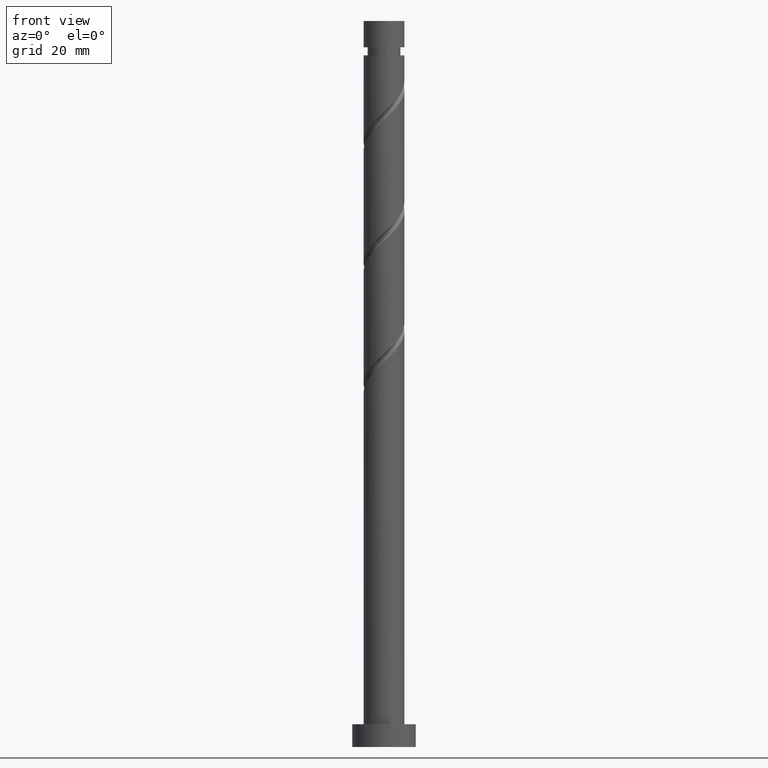
[diagram: clean part render]
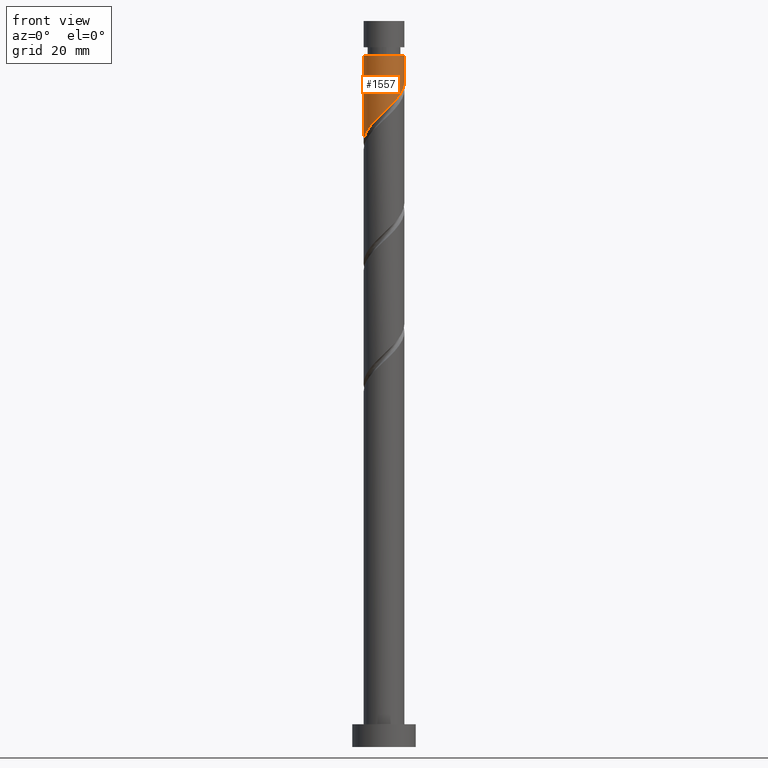
[diagram: same view with one face highlighted and labeled with its STEP entity id]
A machine part, front view. The second image highlights one B-rep face of the part: STEP entity #1557.
In plain terms, the highlighted cylindrical surface (edge-blend (fillet) strip) has radius 4.5 mm, axis along (-0, -0, -1).
Its self-contained STEP definition (entity closure, byte-faithful):
#15 = ORIENTED_EDGE ( 'NONE', *, *, #280, .T. ) ;
#19 = DIRECTION ( 'NONE',  ( -0.000000000000000000, -0.000000000000000000, -1.000000000000000000 ) ) ;
#45 = CARTESIAN_POINT ( 'NONE',  ( -4.500000000000000000, -0.5153801732330594021, 133.7632574273439161 ) ) ;
#63 = CARTESIAN_POINT ( 'NONE',  ( -3.601357663860911273, -2.774677455649288138, 136.0642066314353826 ) ) ;
#139 = CARTESIAN_POINT ( 'NONE',  ( 0.000000000000000000, 0.000000000000000000, 152.4278429950717282 ) ) ;
#196 = CARTESIAN_POINT ( 'NONE',  ( -0.8954886933959596007, -4.410000000000000142, 139.0945096617383570 ) ) ;
#231 = CARTESIAN_POINT ( 'NONE',  ( 4.500000000000000888, 5.510910596163089556E-16, 160.0000000000000000 ) ) ;
#280 = EDGE_CURVE ( 'NONE', #346, #1404, #304, .T. ) ;
#294 = CARTESIAN_POINT ( 'NONE',  ( 4.237671230118710497, -1.513982346470448492, 145.1551157223445045 ) ) ;
#304 = CIRCLE ( 'NONE', #858, 4.499999999999994671 ) ;
#346 = VERTEX_POINT ( 'NONE', #1230 ) ;
#372 = VERTEX_POINT ( 'NONE', #1634 ) ;
#388 = DIRECTION ( 'NONE',  ( -1.000000000000000000, 0.000000000000000000, 0.000000000000000000 ) ) ;
#396 = CARTESIAN_POINT ( 'NONE',  ( -4.383476546723549916, -1.017415040347141808, 134.2460248132535412 ) ) ;
#412 = CYLINDRICAL_SURFACE ( 'NONE', #1386, 4.500000000000000888 ) ;
#424 = CARTESIAN_POINT ( 'NONE',  ( -4.500000000000000888, -1.600379815274127999E-15, 133.2772974743726024 ) ) ;
#435 = CARTESIAN_POINT ( 'NONE',  ( -0.2614264168781278430, -4.538751836628258651, 139.7005702677990371 ) ) ;
#446 = CARTESIAN_POINT ( 'NONE',  ( 4.019993431204682999, -2.123267486448497277, 144.5490551162837960 ) ) ;
#481 = CARTESIAN_POINT ( 'NONE',  ( 4.500000000000000888, 6.730569316573436082E-16, 146.6106308077059737 ) ) ;
#529 = CARTESIAN_POINT ( 'NONE',  ( -4.500000000000000888, 0.000000000000000000, 160.0000000000000000 ) ) ;
#545 = FACE_OUTER_BOUND ( 'NONE', #594, .T. ) ;
#563 = CARTESIAN_POINT ( 'NONE',  ( 3.639477652303301891, -2.646545374329495992, 143.9429945102232296 ) ) ;
#594 = EDGE_LOOP ( 'NONE', ( #1420, #15, #1191, #690 ) ) ;
#613 = VECTOR ( 'NONE', #1105, 1000.000000000000000 ) ;
#634 = DIRECTION ( 'NONE',  ( -0.000000000000000000, -0.000000000000000000, -1.000000000000000000 ) ) ;
#686 = CARTESIAN_POINT ( 'NONE',  ( 4.500000000000001776, -0.1294898693571984727, 146.4885328029877485 ) ) ;
#690 = ORIENTED_EDGE ( 'NONE', *, *, #919, .F. ) ;
#767 = LINE ( 'NONE', #529, #949 ) ;
#774 = DIRECTION ( 'NONE',  ( -0.000000000000000000, -0.000000000000000000, -1.000000000000000000 ) ) ;
#782 = CARTESIAN_POINT ( 'NONE',  ( -4.500000000000000888, -1.600379815274127999E-15, 133.2772974743726024 ) ) ;
#800 = CARTESIAN_POINT ( 'NONE',  ( 3.258961873401919895, -3.169823262210494708, 143.3369339041626631 ) ) ;
#812 = CARTESIAN_POINT ( 'NONE',  ( -2.101655684935354707, -3.979075694426898124, 137.8823884496171672 ) ) ;
#830 = CARTESIAN_POINT ( 'NONE',  ( 1.630892978049455877, -4.194065819005344586, 141.5187520859807648 ) ) ;
#858 = AXIS2_PLACEMENT_3D ( 'NONE', #139, #634, #1494 ) ;
#919 = EDGE_CURVE ( 'NONE', #372, #1454, #1108, .T. ) ;
#933 = CARTESIAN_POINT ( 'NONE',  ( -1.529550969913791691, -4.281248163371740745, 138.4884490556778189 ) ) ;
#949 = VECTOR ( 'NONE', #774, 1000.000000000000000 ) ;
#952 = CARTESIAN_POINT ( 'NONE',  ( 1.027877349690237585, -4.428552829077676556, 140.9126914799202552 ) ) ;
#1029 = CARTESIAN_POINT ( 'NONE',  ( 0.000000000000000000, 0.000000000000000000, 160.0000000000000000 ) ) ;
#1066 = CARTESIAN_POINT ( 'NONE',  ( 2.746435239905295589, -3.564701035571754328, 142.7308732981020114 ) ) ;
#1076 = CARTESIAN_POINT ( 'NONE',  ( -3.919276005899260618, -2.211170637825659036, 135.4581460253747878 ) ) ;
#1105 = DIRECTION ( 'NONE',  ( -0.000000000000000000, -0.000000000000000000, -1.000000000000000000 ) ) ;
#1108 =( BOUNDED_CURVE ( )  B_SPLINE_CURVE ( 2, ( #481, #686, #1604, #1613, #294, #446, #563, #800, #1066, #1594, #830, #952, #1340, #435, #196, #933, #812, #1320, #1199, #63, #1076, #1382, #396, #45, #424 ),
 .UNSPECIFIED., .F., .T. ) 
 B_SPLINE_CURVE_WITH_KNOTS ( ( 3, 2, 2, 2, 2, 2, 2, 2, 2, 2, 2, 2, 3 ),
 ( 0.3045252162417512731, 0.3068181818181818232, 0.3181818181818181768, 0.3295454545454545303, 0.3409090909090908839, 0.3522727272727272929, 0.3636363636363636465, 0.3750000000000000000, 0.3863636363636363535, 0.3977272727272727071, 0.4090909090909091161, 0.4204545454545454697, 0.4295252162417512176 ),
 .UNSPECIFIED. ) 
 CURVE ( )  GEOMETRIC_REPRESENTATION_ITEM ( )  RATIONAL_B_SPLINE_CURVE ( ( 0.9061101570135537964, 0.9072237824201359047, 0.9090909090909135015, 0.8998376744372158509, 0.9090909090909135015, 0.8998376744372158509, 0.9090909090909135015, 0.8998376744372158509, 0.9090909090909135015, 0.8998376744372158509, 0.9090909090909135015, 0.8998376744372158509, 0.9090909090909135015, 0.8998376744372158509, 0.9090909090909135015, 0.8998376744372158509, 0.9090909090909135015, 0.8998376744372158509, 0.9090909090909135015, 0.8998376744372158509, 0.9090909090909135015, 0.8998376744372158509, 0.9090909090909135015, 0.9017048011079934478, 0.9061101570135536853 ) ) 
 REPRESENTATION_ITEM ( '' )  );
#1191 = ORIENTED_EDGE ( 'NONE', *, *, #1524, .T. ) ;
#1199 = CARTESIAN_POINT ( 'NONE',  ( -3.137559031908915497, -3.225790340565672043, 136.6702672374960059 ) ) ;
#1230 = CARTESIAN_POINT ( 'NONE',  ( 4.499999999999994671, 5.510910596163086597E-16, 152.4278429950717282 ) ) ;
#1320 = CARTESIAN_POINT ( 'NONE',  ( -2.673760399956917944, -3.676903225482057280, 137.2763278435566008 ) ) ;
#1340 = CARTESIAN_POINT ( 'NONE',  ( 0.3832254664060540383, -4.483652332852970268, 140.3066308738596035 ) ) ;
#1369 = EDGE_CURVE ( 'NONE', #346, #372, #1377, .T. ) ;
#1377 = LINE ( 'NONE', #231, #613 ) ;
#1382 = CARTESIAN_POINT ( 'NONE',  ( -4.237194347937611738, -1.647663820002031265, 134.8520854193141645 ) ) ;
#1386 = AXIS2_PLACEMENT_3D ( 'NONE', #1029, #19, #388 ) ;
#1404 = VERTEX_POINT ( 'NONE', #1583 ) ;
#1420 = ORIENTED_EDGE ( 'NONE', *, *, #1369, .F. ) ;
#1454 = VERTEX_POINT ( 'NONE', #782 ) ;
#1494 = DIRECTION ( 'NONE',  ( -1.000000000000000000, 0.000000000000000000, 0.000000000000000000 ) ) ;
#1524 = EDGE_CURVE ( 'NONE', #1404, #1454, #767, .T. ) ;
#1557 = ADVANCED_FACE ( 'NONE', ( #545 ), #412, .T. ) ;
#1583 = CARTESIAN_POINT ( 'NONE',  ( -4.499999999999994671, 0.000000000000000000, 152.4278429950717282 ) ) ;
#1594 = CARTESIAN_POINT ( 'NONE',  ( 2.233908606408674835, -3.959578808933013505, 142.1248126920414165 ) ) ;
#1604 = CARTESIAN_POINT ( 'NONE',  ( 4.492553887271115265, -0.2587654729000745113, 146.3672369344656943 ) ) ;
#1613 = CARTESIAN_POINT ( 'NONE',  ( 4.455349029032739772, -0.9046972064924005963, 145.7611763284050426 ) ) ;
#1634 = CARTESIAN_POINT ( 'NONE',  ( 4.500000000000000888, 6.730569316573435096E-16, 146.6106308077059737 ) ) ;